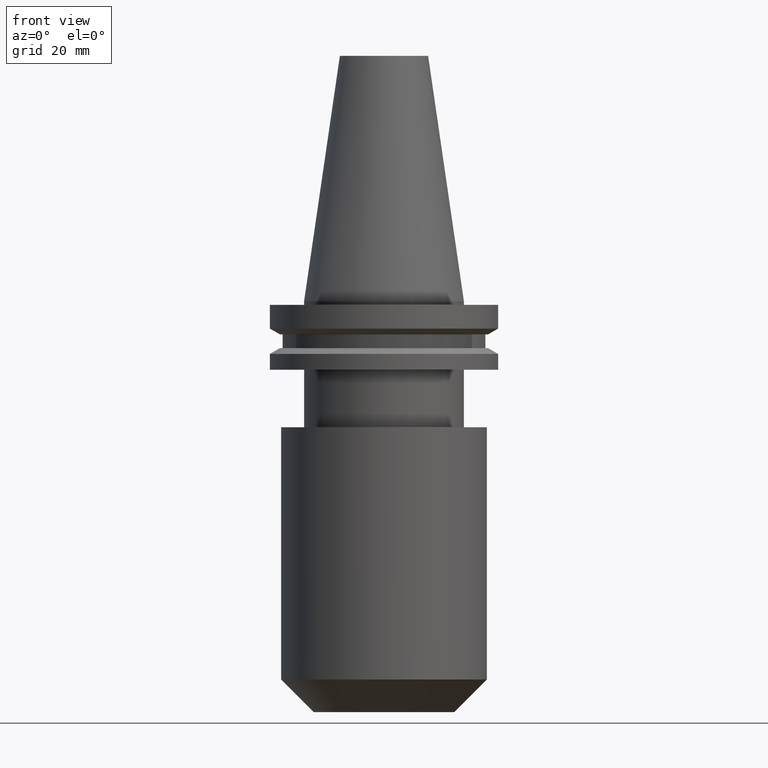
[diagram: clean part render]
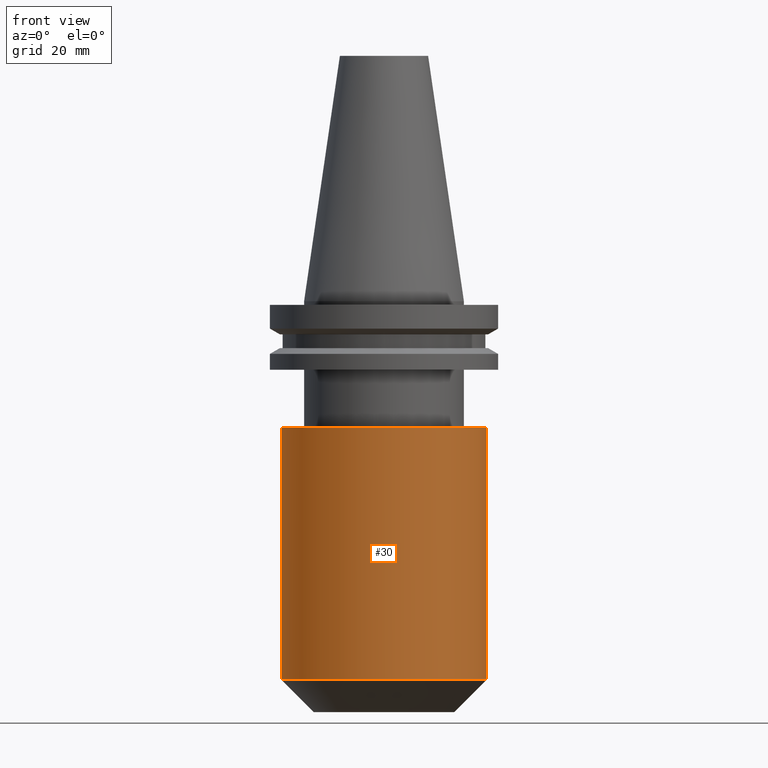
[diagram: same view with one face highlighted and labeled with its STEP entity id]
A machine part, front view. The second image highlights one B-rep face of the part: STEP entity #30.
In plain terms, the highlighted cylindrical surface (partial cylindrical patch) has radius 28.6 mm, axis along (-0, -0, 1).
Its self-contained STEP definition (entity closure, byte-faithful):
#5 = CIRCLE ( 'NONE', #391, 28.60000000000000142 ) ;
#8 = DIRECTION ( 'NONE',  ( 1.000000000000000000, 0.000000000000000000, 0.000000000000000000 ) ) ;
#9 = EDGE_LOOP ( 'NONE', ( #341, #596, #669, #167 ) ) ;
#16 = DIRECTION ( 'NONE',  ( -0.000000000000000000, -0.000000000000000000, 1.000000000000000000 ) ) ;
#18 = VECTOR ( 'NONE', #16, 1000.000000000000000 ) ;
#30 = ADVANCED_FACE ( 'NONE', ( #728 ), #655, .T. ) ;
#112 = EDGE_CURVE ( 'NONE', #837, #212, #123, .T. ) ;
#123 = LINE ( 'NONE', #319, #343 ) ;
#167 = ORIENTED_EDGE ( 'NONE', *, *, #355, .F. ) ;
#188 = CARTESIAN_POINT ( 'NONE',  ( 28.60000000000000142, 0.000000000000000000, -35.04999999999999716 ) ) ;
#193 = CIRCLE ( 'NONE', #344, 28.60000000000000142 ) ;
#197 = CARTESIAN_POINT ( 'NONE',  ( -28.60000000000000142, 3.502489845561430207E-15, -105.2000000000000028 ) ) ;
#210 = DIRECTION ( 'NONE',  ( -0.000000000000000000, -0.000000000000000000, 1.000000000000000000 ) ) ;
#212 = VERTEX_POINT ( 'NONE', #188 ) ;
#229 = CARTESIAN_POINT ( 'NONE',  ( -28.60000000000000142, 3.502489845561430207E-15, 0.000000000000000000 ) ) ;
#319 = CARTESIAN_POINT ( 'NONE',  ( 28.60000000000000142, 0.000000000000000000, 0.000000000000000000 ) ) ;
#325 = EDGE_CURVE ( 'NONE', #608, #372, #479, .T. ) ;
#328 = DIRECTION ( 'NONE',  ( -0.000000000000000000, -0.000000000000000000, 1.000000000000000000 ) ) ;
#341 = ORIENTED_EDGE ( 'NONE', *, *, #325, .F. ) ;
#343 = VECTOR ( 'NONE', #785, 1000.000000000000000 ) ;
#344 = AXIS2_PLACEMENT_3D ( 'NONE', #619, #210, #737 ) ;
#355 = EDGE_CURVE ( 'NONE', #372, #212, #193, .T. ) ;
#372 = VERTEX_POINT ( 'NONE', #568 ) ;
#391 = AXIS2_PLACEMENT_3D ( 'NONE', #798, #594, #8 ) ;
#474 = CARTESIAN_POINT ( 'NONE',  ( 0.000000000000000000, 0.000000000000000000, 0.000000000000000000 ) ) ;
#479 = LINE ( 'NONE', #229, #18 ) ;
#568 = CARTESIAN_POINT ( 'NONE',  ( -28.60000000000000142, 3.502489845561430207E-15, -35.04999999999999716 ) ) ;
#594 = DIRECTION ( 'NONE',  ( -0.000000000000000000, -0.000000000000000000, 1.000000000000000000 ) ) ;
#596 = ORIENTED_EDGE ( 'NONE', *, *, #784, .T. ) ;
#602 = CARTESIAN_POINT ( 'NONE',  ( 28.60000000000000142, 0.000000000000000000, -105.2000000000000028 ) ) ;
#608 = VERTEX_POINT ( 'NONE', #197 ) ;
#619 = CARTESIAN_POINT ( 'NONE',  ( 0.000000000000000000, 0.000000000000000000, -35.04999999999999716 ) ) ;
#655 = CYLINDRICAL_SURFACE ( 'NONE', #848, 28.60000000000000142 ) ;
#669 = ORIENTED_EDGE ( 'NONE', *, *, #112, .T. ) ;
#728 = FACE_OUTER_BOUND ( 'NONE', #9, .T. ) ;
#733 = DIRECTION ( 'NONE',  ( 1.000000000000000000, 0.000000000000000000, 0.000000000000000000 ) ) ;
#737 = DIRECTION ( 'NONE',  ( 1.000000000000000000, 0.000000000000000000, 0.000000000000000000 ) ) ;
#784 = EDGE_CURVE ( 'NONE', #608, #837, #5, .T. ) ;
#785 = DIRECTION ( 'NONE',  ( -0.000000000000000000, -0.000000000000000000, 1.000000000000000000 ) ) ;
#798 = CARTESIAN_POINT ( 'NONE',  ( 0.000000000000000000, 0.000000000000000000, -105.2000000000000028 ) ) ;
#837 = VERTEX_POINT ( 'NONE', #602 ) ;
#848 = AXIS2_PLACEMENT_3D ( 'NONE', #474, #328, #733 ) ;